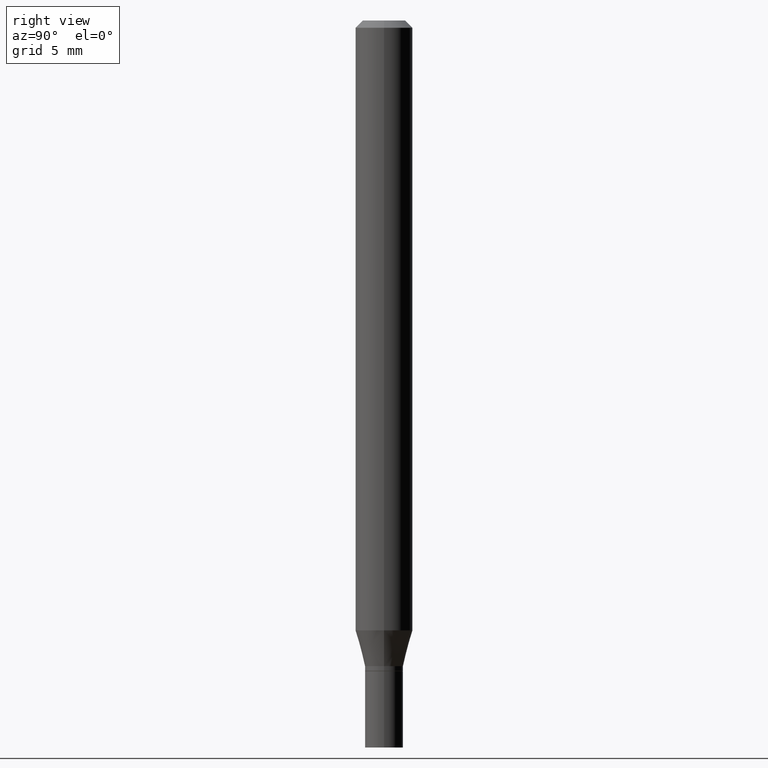
[diagram: clean part render]
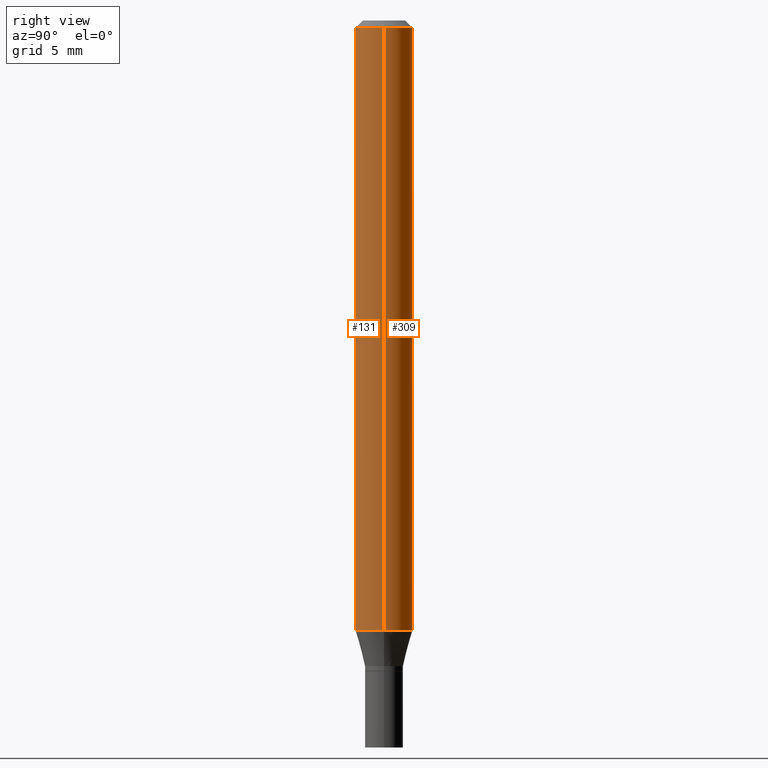
[diagram: same view with one multi-face feature highlighted, each face labeled with its STEP entity id]
A machine part, right view. The highlighted faces form ONE feature: a constant-radius fillet chain: 2 tangent blend faces with common blend radius 1.4999 mm. The faces share edges in the B-rep.
Their STEP definitions:
[1] entity #131 (Cylinder):
#4 = CARTESIAN_POINT ( 'NONE',  ( 0.000000000000000000, 0.000000000000000000, 0.000000000000000000 ) ) ;
#8 = AXIS2_PLACEMENT_3D ( 'NONE', #396, #403, #324 ) ;
#32 = VERTEX_POINT ( 'NONE', #102 ) ;
#33 = DIRECTION ( 'NONE',  ( -2.445468806185136597E-29, 3.491481338843145583E-15, 1.000000000000000000 ) ) ;
#49 = VECTOR ( 'NONE', #105, 39.37007874015748143 ) ;
#59 = EDGE_CURVE ( 'NONE', #123, #301, #199, .T. ) ;
#73 = CARTESIAN_POINT ( 'NONE',  ( 0.05905000000000000526, -4.123439461173741313E-16, 2.879382386107500571E-30 ) ) ;
#101 = DIRECTION ( 'NONE',  ( 1.000000000000000000, -6.982962677686266711E-15, 0.000000000000000000 ) ) ;
#102 = CARTESIAN_POINT ( 'NONE',  ( 0.05905000000000001914, -4.647161662000214077E-16, -0.01499999999999999944 ) ) ;
#105 = DIRECTION ( 'NONE',  ( -2.445468806185136877E-29, 3.491481338843145188E-15, 1.000000000000000000 ) ) ;
#109 = LINE ( 'NONE', #73, #235 ) ;
#114 = EDGE_CURVE ( 'NONE', #392, #32, #109, .T. ) ;
#116 = CARTESIAN_POINT ( 'NONE',  ( 0.05904999999999999832, -4.806298490176690937E-15, -1.258478599090893102 ) ) ;
#123 = VERTEX_POINT ( 'NONE', #177 ) ;
#125 = EDGE_LOOP ( 'NONE', ( #379, #411, #242, #310 ) ) ;
#126 = AXIS2_PLACEMENT_3D ( 'NONE', #137, #308, #101 ) ;
#131 = ADVANCED_FACE ( 'NONE', ( #258 ), #325, .T. ) ;
#137 = CARTESIAN_POINT ( 'NONE',  ( 3.668203209277705088E-31, -5.237222008264718399E-17, -0.01499999999999999944 ) ) ;
#142 = CARTESIAN_POINT ( 'NONE',  ( -0.05905000000000000526, 4.195754854663391971E-16, -2.904631170795522242E-30 ) ) ;
#177 = CARTESIAN_POINT ( 'NONE',  ( -0.05904999999999999832, -3.974379058592978101E-15, -1.258478599090893102 ) ) ;
#189 = CIRCLE ( 'NONE', #126, 0.05905000000000001914 ) ;
#199 = LINE ( 'NONE', #142, #49 ) ;
#220 = EDGE_CURVE ( 'NONE', #123, #392, #307, .T. ) ;
#235 = VECTOR ( 'NONE', #436, 39.37007874015748143 ) ;
#242 = ORIENTED_EDGE ( 'NONE', *, *, #114, .T. ) ;
#258 = FACE_OUTER_BOUND ( 'NONE', #125, .T. ) ;
#277 = AXIS2_PLACEMENT_3D ( 'NONE', #4, #33, #365 ) ;
#301 = VERTEX_POINT ( 'NONE', #416 ) ;
#307 = CIRCLE ( 'NONE', #8, 0.05904999999999999832 ) ;
#308 = DIRECTION ( 'NONE',  ( -2.445468806185136597E-29, 3.491481338843145583E-15, 1.000000000000000000 ) ) ;
#310 = ORIENTED_EDGE ( 'NONE', *, *, #420, .F. ) ;
#324 = DIRECTION ( 'NONE',  ( 1.000000000000000000, -6.982962677686273021E-15, 0.000000000000000000 ) ) ;
#325 = CYLINDRICAL_SURFACE ( 'NONE', #277, 0.05905000000000000526 ) ;
#365 = DIRECTION ( 'NONE',  ( 1.000000000000000000, -6.982962677686267499E-15, 4.876176775795936353E-29 ) ) ;
#379 = ORIENTED_EDGE ( 'NONE', *, *, #59, .F. ) ;
#392 = VERTEX_POINT ( 'NONE', #116 ) ;
#396 = CARTESIAN_POINT ( 'NONE',  ( 3.077570157328349519E-29, -4.393954544059317594E-15, -1.258478599090893102 ) ) ;
#403 = DIRECTION ( 'NONE',  ( -2.445468806185136597E-29, 3.491481338843145583E-15, 1.000000000000000000 ) ) ;
#411 = ORIENTED_EDGE ( 'NONE', *, *, #220, .T. ) ;
#416 = CARTESIAN_POINT ( 'NONE',  ( -0.05905000000000002608, -1.803587896604643436E-15, -0.01499999999999999944 ) ) ;
#420 = EDGE_CURVE ( 'NONE', #301, #32, #189, .T. ) ;
#436 = DIRECTION ( 'NONE',  ( -2.445468806185136877E-29, 3.491481338843145188E-15, 1.000000000000000000 ) ) ;
[2] entity #309 (Cylinder):
#10 = CARTESIAN_POINT ( 'NONE',  ( 3.668203209277705088E-31, -5.237222008264718399E-17, -0.01499999999999999944 ) ) ;
#18 = ORIENTED_EDGE ( 'NONE', *, *, #114, .F. ) ;
#32 = VERTEX_POINT ( 'NONE', #102 ) ;
#35 = EDGE_CURVE ( 'NONE', #392, #123, #315, .T. ) ;
#49 = VECTOR ( 'NONE', #105, 39.37007874015748143 ) ;
#59 = EDGE_CURVE ( 'NONE', #123, #301, #199, .T. ) ;
#73 = CARTESIAN_POINT ( 'NONE',  ( 0.05905000000000000526, -4.123439461173741313E-16, 2.879382386107500571E-30 ) ) ;
#75 = DIRECTION ( 'NONE',  ( -2.445468806185136597E-29, 3.491481338843145583E-15, 1.000000000000000000 ) ) ;
#102 = CARTESIAN_POINT ( 'NONE',  ( 0.05905000000000001914, -4.647161662000214077E-16, -0.01499999999999999944 ) ) ;
#104 = AXIS2_PLACEMENT_3D ( 'NONE', #138, #244, #238 ) ;
#105 = DIRECTION ( 'NONE',  ( -2.445468806185136877E-29, 3.491481338843145188E-15, 1.000000000000000000 ) ) ;
#109 = LINE ( 'NONE', #73, #235 ) ;
#114 = EDGE_CURVE ( 'NONE', #392, #32, #109, .T. ) ;
#116 = CARTESIAN_POINT ( 'NONE',  ( 0.05904999999999999832, -4.806298490176690937E-15, -1.258478599090893102 ) ) ;
#119 = EDGE_LOOP ( 'NONE', ( #318, #389, #272, #18 ) ) ;
#123 = VERTEX_POINT ( 'NONE', #177 ) ;
#138 = CARTESIAN_POINT ( 'NONE',  ( 3.077570157328349519E-29, -4.393954544059317594E-15, -1.258478599090893102 ) ) ;
#142 = CARTESIAN_POINT ( 'NONE',  ( -0.05905000000000000526, 4.195754854663391971E-16, -2.904631170795522242E-30 ) ) ;
#143 = CIRCLE ( 'NONE', #430, 0.05905000000000001914 ) ;
#165 = CARTESIAN_POINT ( 'NONE',  ( 0.000000000000000000, 0.000000000000000000, 0.000000000000000000 ) ) ;
#177 = CARTESIAN_POINT ( 'NONE',  ( -0.05904999999999999832, -3.974379058592978101E-15, -1.258478599090893102 ) ) ;
#199 = LINE ( 'NONE', #142, #49 ) ;
#235 = VECTOR ( 'NONE', #436, 39.37007874015748143 ) ;
#238 = DIRECTION ( 'NONE',  ( 1.000000000000000000, -6.982962677686273021E-15, 0.000000000000000000 ) ) ;
#240 = EDGE_CURVE ( 'NONE', #32, #301, #143, .T. ) ;
#244 = DIRECTION ( 'NONE',  ( -2.445468806185136597E-29, 3.491481338843145583E-15, 1.000000000000000000 ) ) ;
#267 = CYLINDRICAL_SURFACE ( 'NONE', #397, 0.05905000000000000526 ) ;
#272 = ORIENTED_EDGE ( 'NONE', *, *, #240, .F. ) ;
#301 = VERTEX_POINT ( 'NONE', #416 ) ;
#309 = ADVANCED_FACE ( 'NONE', ( #340 ), #267, .T. ) ;
#315 = CIRCLE ( 'NONE', #104, 0.05904999999999999832 ) ;
#318 = ORIENTED_EDGE ( 'NONE', *, *, #35, .T. ) ;
#340 = FACE_OUTER_BOUND ( 'NONE', #119, .T. ) ;
#362 = DIRECTION ( 'NONE',  ( 1.000000000000000000, -6.982962677686266711E-15, 0.000000000000000000 ) ) ;
#389 = ORIENTED_EDGE ( 'NONE', *, *, #59, .T. ) ;
#392 = VERTEX_POINT ( 'NONE', #116 ) ;
#397 = AXIS2_PLACEMENT_3D ( 'NONE', #165, #446, #406 ) ;
#406 = DIRECTION ( 'NONE',  ( 1.000000000000000000, -6.982962677686267499E-15, 4.876176775795936353E-29 ) ) ;
#416 = CARTESIAN_POINT ( 'NONE',  ( -0.05905000000000002608, -1.803587896604643436E-15, -0.01499999999999999944 ) ) ;
#430 = AXIS2_PLACEMENT_3D ( 'NONE', #10, #75, #362 ) ;
#436 = DIRECTION ( 'NONE',  ( -2.445468806185136877E-29, 3.491481338843145188E-15, 1.000000000000000000 ) ) ;
#446 = DIRECTION ( 'NONE',  ( -2.445468806185136597E-29, 3.491481338843145583E-15, 1.000000000000000000 ) ) ;